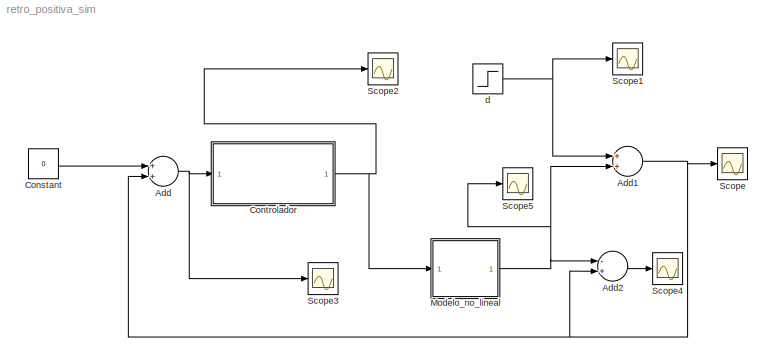
MODEL retro_positiva_sim
KIND model
BLOCK [Sum] Add
  InputSameDT = off
  OutDataTypeMode = Inherit via internal rule
  OutDataTypeStr = Inherit: Inherit via internal rule
  Ports = [2, 1]
  SaturateOnIntegerOverflow = off
BLOCK [Sum] Add1
  InputSameDT = off
  OutDataTypeMode = Inherit via internal rule
  OutDataTypeStr = Inherit: Inherit via internal rule
  Ports = [2, 1]
  SaturateOnIntegerOverflow = off
BLOCK [Sum] Add2
  InputSameDT = off
  Inputs = -+
  OutDataTypeMode = Inherit via internal rule
  OutDataTypeStr = Inherit: Inherit via internal rule
  Ports = [2, 1]
  SaturateOnIntegerOverflow = off
BLOCK [Constant] Constant
  Value = 0
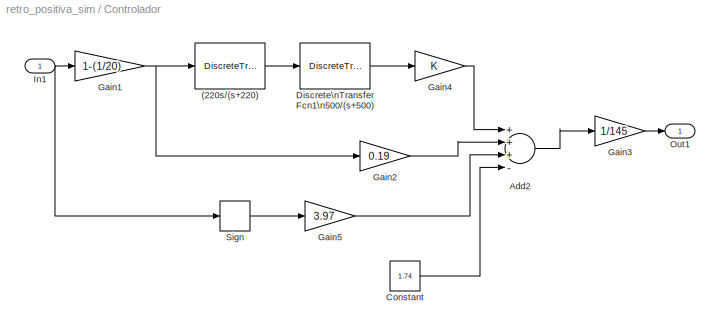
BLOCK [SubSystem] Controlador
  FunctionWithSeparateData = off
  MaskHideContents = off
  MinAlgLoopOccurrences = off
  Opaque = off
  Ports = [1, 1]
  PropExecContextOutsideSubsystem = off
  RTWSystemCode = Auto
BLOCK [DiscreteTransferFcn] Controlador/(220s//(s+220)
  Denominator = [1 -0.8018]
  Numerator = [198.2 -198.2]
  Ports = [1, 1]
  SampleTime = 0.001
BLOCK [Sum] Controlador/Add2
  InputSameDT = off
  Inputs = +++-
  OutDataTypeMode = Inherit via internal rule
  OutDataTypeStr = Inherit: Inherit via internal rule
  Ports = [4, 1]
  SaturateOnIntegerOverflow = off
BLOCK [Constant] Controlador/Constant
  Value = 1.74
BLOCK [DiscreteTransferFcn] Controlador/Discrete\nTransfer Fcn1\n500//(s+500)
  Denominator = [1 -0.6]
  Numerator = [0.2 0.2]
  Ports = [1, 1]
  SampleTime = 0.001
BLOCK [Gain] Controlador/Gain1
  Gain = 1-(1/20)
  OutDataTypeMode = Inherit via internal rule
  OutDataTypeStr = Inherit: Inherit via internal rule
  ParamDataTypeStr = Inherit: Inherit via internal rule
  ParameterDataTypeMode = Inherit via internal rule
  SaturateOnIntegerOverflow = off
BLOCK [Gain] Controlador/Gain2
  Gain = 0.19
  OutDataTypeMode = Inherit via internal rule
  OutDataTypeStr = Inherit: Inherit via internal rule
  ParamDataTypeStr = Inherit: Inherit via internal rule
  ParameterDataTypeMode = Inherit via internal rule
  SaturateOnIntegerOverflow = off
BLOCK [Gain] Controlador/Gain3
  Gain = 1/145
  OutDataTypeMode = Inherit via internal rule
  OutDataTypeStr = Inherit: Inherit via internal rule
  ParamDataTypeStr = Inherit: Inherit via internal rule
  ParameterDataTypeMode = Inherit via internal rule
  SaturateOnIntegerOverflow = off
BLOCK [Gain] Controlador/Gain4
  OutDataTypeMode = Inherit via internal rule
  OutDataTypeStr = Inherit: Inherit via internal rule
  ParamDataTypeStr = Inherit: Inherit via internal rule
  ParameterDataTypeMode = Inherit via internal rule
  SaturateOnIntegerOverflow = off
BLOCK [Gain] Controlador/Gain5
  Gain = 3.97
  OutDataTypeMode = Inherit via internal rule
  OutDataTypeStr = Inherit: Inherit via internal rule
  ParamDataTypeStr = Inherit: Inherit via internal rule
  ParameterDataTypeMode = Inherit via internal rule
  SaturateOnIntegerOverflow = off
BLOCK [Inport] Controlador/In1
  IconDisplay = Port number
BLOCK [Outport] Controlador/Out1
  IconDisplay = Port number
BLOCK [Signum] Controlador/Sign
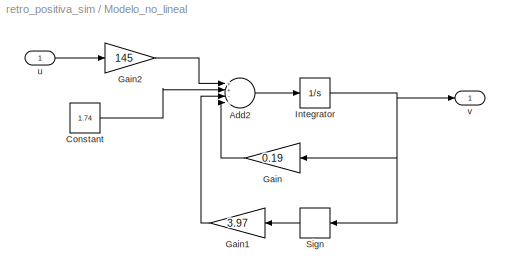
BLOCK [SubSystem] Modelo_no_lineal
  FunctionWithSeparateData = off
  MaskHideContents = off
  MinAlgLoopOccurrences = off
  Opaque = off
  Ports = [1, 1]
  PropExecContextOutsideSubsystem = off
  RTWSystemCode = Auto
BLOCK [Sum] Modelo_no_lineal/Add2
  InputSameDT = off
  Inputs = ++--
  OutDataTypeMode = Inherit via internal rule
  OutDataTypeStr = Inherit: Inherit via internal rule
  Ports = [4, 1]
  SaturateOnIntegerOverflow = off
BLOCK [Constant] Modelo_no_lineal/Constant
  Value = 1.74
BLOCK [Gain] Modelo_no_lineal/Gain
  Gain = 0.19
  OutDataTypeMode = Inherit via internal rule
  OutDataTypeStr = Inherit: Inherit via internal rule
  ParamDataTypeStr = Inherit: Inherit via internal rule
  ParameterDataTypeMode = Inherit via internal rule
  SaturateOnIntegerOverflow = off
BLOCK [Gain] Modelo_no_lineal/Gain1
  Gain = 3.97
  OutDataTypeMode = Inherit via internal rule
  OutDataTypeStr = Inherit: Inherit via internal rule
  ParamDataTypeStr = Inherit: Inherit via internal rule
  ParameterDataTypeMode = Inherit via internal rule
  SaturateOnIntegerOverflow = off
BLOCK [Gain] Modelo_no_lineal/Gain2
  Gain = 145
  OutDataTypeMode = Inherit via internal rule
  OutDataTypeStr = Inherit: Inherit via internal rule
  ParamDataTypeStr = Inherit: Inherit via internal rule
  ParameterDataTypeMode = Inherit via internal rule
  SaturateOnIntegerOverflow = off
BLOCK [Integrator] Modelo_no_lineal/Integrator
  InitialCondition = 0.1
  Ports = [1, 1]
BLOCK [Signum] Modelo_no_lineal/Sign
BLOCK [Inport] Modelo_no_lineal/u
  IconDisplay = Port number
BLOCK [Outport] Modelo_no_lineal/v
  IconDisplay = Port number
BLOCK [Scope] Scope
  Floating = off
  LimitDataPoints = off
  NumInputPorts = 1
  Ports = [1]
  TimeRange = 50
  YMax = 20
  YMin = -15
BLOCK [Scope] Scope1
  Floating = off
  LimitDataPoints = off
  NumInputPorts = 1
  Ports = [1]
  SaveName = ScopeData1
BLOCK [Scope] Scope2
  Floating = off
  LimitDataPoints = off
  NumInputPorts = 1
  Ports = [1]
  SaveName = ScopeData2
BLOCK [Scope] Scope3
  Floating = off
  LimitDataPoints = off
  NumInputPorts = 1
  Ports = [1]
  SaveName = ScopeData3
  YMax = 20
  YMin = 20
BLOCK [Scope] Scope4
  Floating = off
  LimitDataPoints = off
  NumInputPorts = 1
  Ports = [1]
  SaveName = ScopeData4
  TimeRange = 50
  YMax = 20
  YMin = -15
BLOCK [Scope] Scope5
  Floating = off
  LimitDataPoints = off
  NumInputPorts = 1
  Ports = [1]
  SaveName = ScopeData5
BLOCK [Step] d
  SampleTime = 0
  Time = 0
NET Add1:1 -> Add2:2, Add:2, Scope:1
LINE Add2:1 -> Scope4:1
NET Add:1 -> Controlador:1, Scope3:1
LINE Constant:1 -> Add:1
LINE Controlador/(220s//(s+220):1 -> Controlador/Discrete\nTransfer Fcn1\n500//(s+500):1
LINE Controlador/Add2:1 -> Controlador/Gain3:1
LINE Controlador/Constant:1 -> Controlador/Add2:4
LINE Controlador/Discrete\nTransfer Fcn1\n500//(s+500):1 -> Controlador/Gain4:1
NET Controlador/Gain1:1 -> Controlador/(220s//(s+220):1, Controlador/Gain2:1
LINE Controlador/Gain2:1 -> Controlador/Add2:2
LINE Controlador/Gain3:1 -> Controlador/Out1:1
LINE Controlador/Gain4:1 -> Controlador/Add2:1
LINE Controlador/Gain5:1 -> Controlador/Add2:3
NET Controlador/In1:1 -> Controlador/Gain1:1, Controlador/Sign:1
LINE Controlador/Sign:1 -> Controlador/Gain5:1
NET Controlador:1 -> Modelo_no_lineal:1, Scope2:1
LINE Modelo_no_lineal/Add2:1 -> Modelo_no_lineal/Integrator:1
LINE Modelo_no_lineal/Constant:1 -> Modelo_no_lineal/Add2:2
LINE Modelo_no_lineal/Gain1:1 -> Modelo_no_lineal/Add2:3
LINE Modelo_no_lineal/Gain2:1 -> Modelo_no_lineal/Add2:1
LINE Modelo_no_lineal/Gain:1 -> Modelo_no_lineal/Add2:4
NET Modelo_no_lineal/Integrator:1 -> Modelo_no_lineal/Gain:1, Modelo_no_lineal/Sign:1, Modelo_no_lineal/v:1
LINE Modelo_no_lineal/Sign:1 -> Modelo_no_lineal/Gain1:1
LINE Modelo_no_lineal/u:1 -> Modelo_no_lineal/Gain2:1
NET Modelo_no_lineal:1 -> Add1:2, Add2:1, Scope5:1
NET d:1 -> Add1:1, Scope1:1
note: NET lines group one-source signal fan-out (src -> all destinations, sorted); 1:1 wires keep LINE
